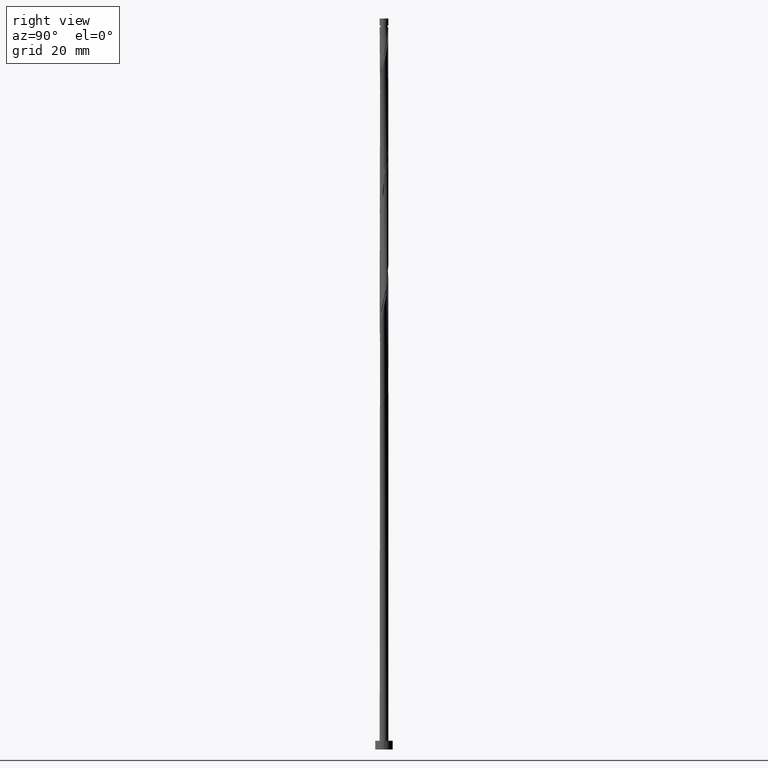
[diagram: clean part render]
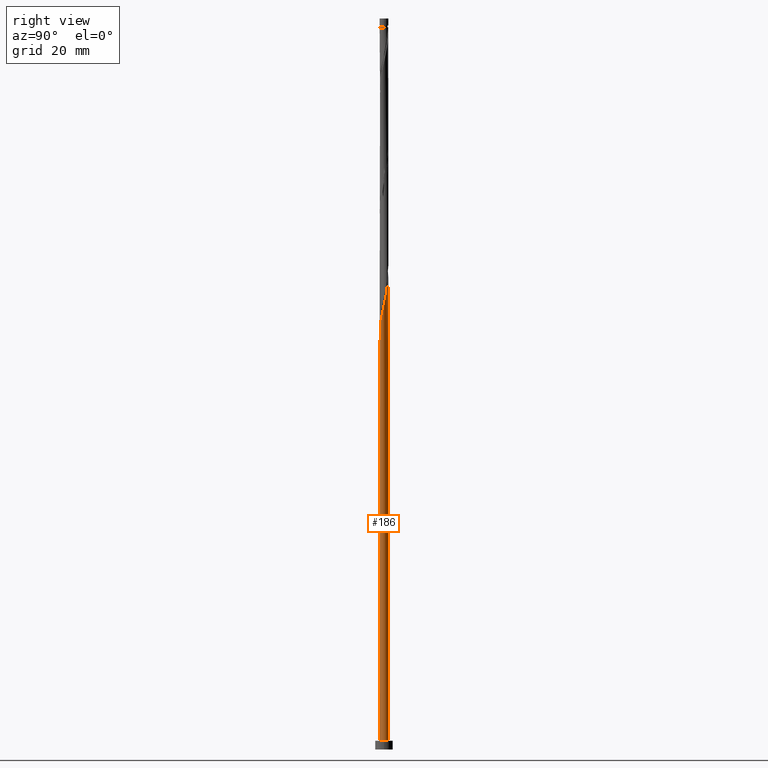
[diagram: same view with one face highlighted and labeled with its STEP entity id]
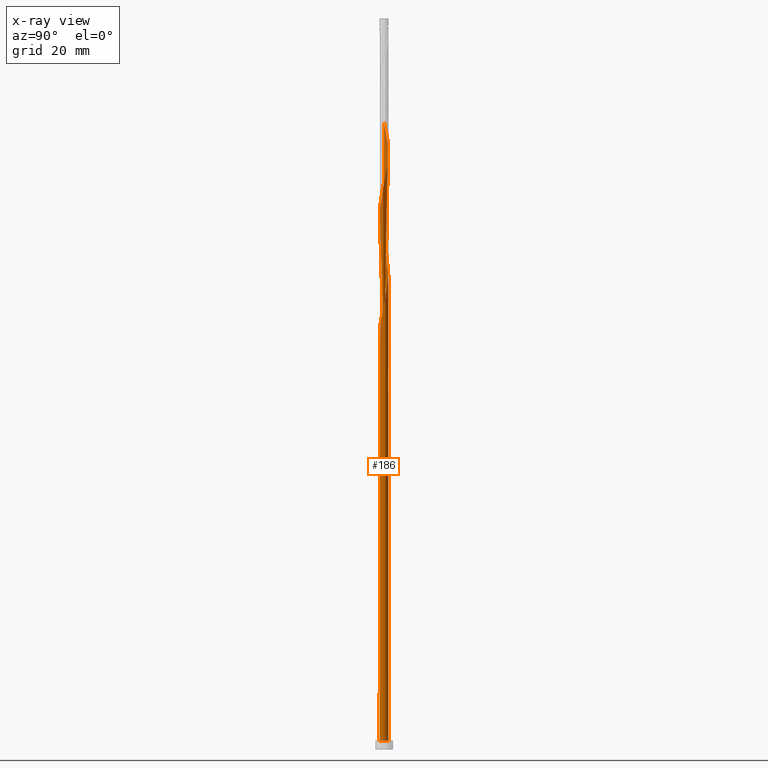
[diagram: x-ray of the same camera — body ghosted, the highlighted face saturated]
A machine part, right view. The second image highlights one B-rep face of the part: STEP entity #186.
The next image is the same camera in x-ray: the body ghosted, the highlighted face saturated — about 0% of this face is hidden behind the body in this view.
In plain terms, the highlighted cylindrical surface (bore or boss wall) has radius 0.75 mm, axis along (-0, -0, -1).
Its self-contained STEP definition (entity closure, byte-faithful):
#16 = EDGE_CURVE ( 'NONE', #1268, #358, #370, .T. ) ;
#21 = AXIS2_PLACEMENT_3D ( 'NONE', #22, #263, #475 ) ;
#22 = CARTESIAN_POINT ( 'NONE',  ( 0.000000000000000000, 0.000000000000000000, 125.0000000000000000 ) ) ;
#43 = CARTESIAN_POINT ( 'NONE',  ( -0.3690708837193967806, 0.6529063353886108700, 82.86957666063429429 ) ) ;
#53 = CARTESIAN_POINT ( 'NONE',  ( -0.5527664223062930260, 0.5069016496034537411, 83.91124332730096569 ) ) ;
#61 = CARTESIAN_POINT ( 'NONE',  ( 0.7451467435652671112, -0.08518409801177667662, 75.57790999396762288 ) ) ;
#68 = CARTESIAN_POINT ( 'NONE',  ( -0.6330517563783204515, 0.4193520491762752767, 84.43207666063430850 ) ) ;
#76 = CARTESIAN_POINT ( 'NONE',  ( -0.4724810882342659335, 0.5944512500306322611, 83.39040999396762288 ) ) ;
#88 = CARTESIAN_POINT ( 'NONE',  ( -0.5527664223062930260, 0.5069016496034537411, 104.7445766606343369 ) ) ;
#96 = CARTESIAN_POINT ( 'NONE',  ( 0.4193520491762752767, 0.6330517563783202295, 100.0570766606343085 ) ) ;
#144 = AXIS2_PLACEMENT_3D ( 'NONE', #674, #793, #1123 ) ;
#152 = CARTESIAN_POINT ( 'NONE',  ( 0.7316549078771213965, -0.2032037479510122313, 75.05707666063428007 ) ) ;
#160 = CARTESIAN_POINT ( 'NONE',  ( -0.7350000000000010969, -0.1492481155659933223, 66.20290999396762288 ) ) ;
#166 = CARTESIAN_POINT ( 'NONE',  ( -0.08518409801177663498, -0.7451467435652671112, 70.36957666063426586 ) ) ;
#171 = CARTESIAN_POINT ( 'NONE',  ( 0.7113614207465897010, 0.2656606792045275722, 77.14040999396762288 ) ) ;
#178 = CARTESIAN_POINT ( 'NONE',  ( -0.7113614207465897010, -0.2656606792045276833, 87.55707666063430850 ) ) ;
#185 =( BOUNDED_CURVE ( )  B_SPLINE_CURVE ( 2, ( #1436, #438, #327, #789, #670, #1453, #1118, #804, #684, #884, #1216, #635, #523 ),
 .UNSPECIFIED., .F., .T. ) 
 B_SPLINE_CURVE_WITH_KNOTS ( ( 3, 2, 2, 2, 2, 2, 3 ),
 ( 0.9295322023138552492, 0.9375000000000000000, 0.9499999999999999556, 0.9625000000000000222, 0.9749999999999999778, 0.9875000000000000444, 1.000000000000000000 ),
 .UNSPECIFIED. ) 
 CURVE ( )  GEOMETRIC_REPRESENTATION_ITEM ( )  RATIONAL_B_SPLINE_CURVE ( ( 0.9039174447099550536, 0.9019565955404844626, 0.9090909090909328194, 0.8978984914501488834, 0.9090909090909328194, 0.8978984914501488834, 0.9090909090909328194, 0.8978984914501488834, 0.9090909090909328194, 0.8978984914501488834, 0.9090909090909328194, 0.8978984914501488834, 0.9090909090909328194 ) ) 
 REPRESENTATION_ITEM ( '' )  );
#186 = ADVANCED_FACE ( 'NONE', ( #834 ), #1273, .T. ) ;
#196 =( BOUNDED_CURVE ( )  B_SPLINE_CURVE ( 2, ( #966, #1176, #160, #511, #752, #1184, #629, #637, #1307, #1418, #166, #305, #1190, #410, #1089, #736, #864, #1077, #762, #152, #61, #417, #517, #171, #609, #618, #1069, #1082, #1060, #842, #389, #1301, #1198, #1407, #43, #76, #53, #68, #525, #506, #960, #1400, #971, #178, #980, #495, #277, #950, #1393, #1281, #560, #1010, #1340, #440, #1111, #770, #1103, #454, #879, #1016, #218, #1218, #901, #345, #1447, #908, #1325, #96, #893, #1226, #645, #532, #654, #329, #448, #1210, #88, #337, #207, #1438, #791, #321, #538 ),
 .UNSPECIFIED., .F., .T. ) 
 B_SPLINE_CURVE_WITH_KNOTS ( ( 3, 2, 2, 2, 2, 2, 2, 2, 2, 2, 2, 2, 2, 2, 2, 2, 2, 2, 2, 2, 2, 2, 2, 2, 2, 2, 2, 2, 2, 2, 2, 2, 2, 2, 2, 2, 2, 2, 2, 2, 2, 3 ),
 ( 0.05453220231385545735, 0.06250000000000000000, 0.07499999999999995559, 0.08750000000000002220, 0.09999999999999997780, 0.1125000000000000444, 0.1250000000000000000, 0.1374999999999999556, 0.1500000000000000222, 0.1624999999999999778, 0.1750000000000000444, 0.1875000000000000000, 0.1999999999999999556, 0.2125000000000000222, 0.2249999999999999778, 0.2375000000000000444, 0.2500000000000000000, 0.2624999999999999556, 0.2750000000000000222, 0.2874999999999999778, 0.3000000000000000444, 0.3125000000000000000, 0.3249999999999999556, 0.3375000000000000222, 0.3499999999999999778, 0.3625000000000000444, 0.3750000000000000000, 0.3874999999999999556, 0.4000000000000000222, 0.4124999999999999778, 0.4250000000000000444, 0.4375000000000000000, 0.4499999999999999556, 0.4625000000000000222, 0.4749999999999999778, 0.4875000000000000444, 0.5000000000000000000, 0.5124999999999999556, 0.5250000000000000222, 0.5374999999999999778, 0.5500000000000000444, 0.5545322023138555823 ),
 .UNSPECIFIED. ) 
 CURVE ( )  GEOMETRIC_REPRESENTATION_ITEM ( )  RATIONAL_B_SPLINE_CURVE ( ( 0.9039174447099538323, 0.9019565955404834634, 0.9090909090909319312, 0.8978984914501476622, 0.9090909090909319312, 0.8978984914501476622, 0.9090909090909319312, 0.8978984914501476622, 0.9090909090909319312, 0.8978984914501476622, 0.9090909090909319312, 0.8978984914501476622, 0.9090909090909319312, 0.8978984914501476622, 0.9090909090909319312, 0.8978984914501476622, 0.9090909090909319312, 0.8978984914501476622, 0.9090909090909319312, 0.8978984914501476622, 0.9090909090909319312, 0.8978984914501476622, 0.9090909090909319312, 0.8978984914501476622, 0.9090909090909319312, 0.8978984914501476622, 0.9090909090909319312, 0.8978984914501476622, 0.9090909090909319312, 0.8978984914501476622, 0.9090909090909319312, 0.8978984914501476622, 0.9090909090909319312, 0.8978984914501476622, 0.9090909090909319312, 0.8978984914501476622, 0.9090909090909319312, 0.8978984914501476622, 0.9090909090909319312, 0.8978984914501476622, 0.9090909090909319312, 0.8978984914501476622, 0.9090909090909319312, 0.8978984914501476622, 0.9090909090909319312, 0.8978984914501476622, 0.9090909090909319312, 0.8978984914501476622, 0.9090909090909319312, 0.8978984914501476622, 0.9090909090909319312, 0.8978984914501476622, 0.9090909090909319312, 0.8978984914501476622, 0.9090909090909319312, 0.8978984914501476622, 0.9090909090909319312, 0.8978984914501476622, 0.9090909090909319312, 0.8978984914501476622, 0.9090909090909319312, 0.8978984914501476622, 0.9090909090909319312, 0.8978984914501476622, 0.9090909090909319312, 0.8978984914501476622, 0.9090909090909319312, 0.8978984914501476622, 0.9090909090909319312, 0.8978984914501476622, 0.9090909090909319312, 0.8978984914501476622, 0.9090909090909319312, 0.8978984914501476622, 0.9090909090909319312, 0.8978984914501476622, 0.9090909090909319312, 0.8978984914501476622, 0.9090909090909319312, 0.8978984914501476622, 0.9090909090909319312, 0.9050328050005959080, 0.9039174447099538323 ) ) 
 REPRESENTATION_ITEM ( '' )  );
#207 = CARTESIAN_POINT ( 'NONE',  ( -0.6823533321277208685, 0.3112778985636436846, 105.7862433273009657 ) ) ;
#218 = CARTESIAN_POINT ( 'NONE',  ( 0.7451467435652671112, -0.08518409801177667662, 96.41124332730096569 ) ) ;
#223 = CARTESIAN_POINT ( 'NONE',  ( -0.7500000000000012212, -9.145792697755348521E-16, 65.53810755249737952 ) ) ;
#263 = DIRECTION ( 'NONE',  ( -0.000000000000000000, -0.000000000000000000, -1.000000000000000000 ) ) ;
#277 = CARTESIAN_POINT ( 'NONE',  ( -0.5069016496034537411, -0.5527664223062929150, 89.11957666063430850 ) ) ;
#283 = CARTESIAN_POINT ( 'NONE',  ( -0.1492481155659932113, 0.7350000000000010969, 60.99457666063429429 ) ) ;
#287 = VERTEX_POINT ( 'NONE', #1420 ) ;
#292 = CARTESIAN_POINT ( 'NONE',  ( -0.3690708837193967806, 0.6529063353886108700, 62.03624332730095858 ) ) ;
#302 = LINE ( 'NONE', #1352, #1068 ) ;
#305 = CARTESIAN_POINT ( 'NONE',  ( 0.03283555192745890583, -0.7586385792534124928, 70.89040999396763709 ) ) ;
#321 = CARTESIAN_POINT ( 'NONE',  ( -0.7500000000000015543, 0.04273030308482107104, 107.0152631299567645 ) ) ;
#327 = CARTESIAN_POINT ( 'NONE',  ( -0.7350000000000015410, 0.1492481155659934611, 66.20290999396763709 ) ) ;
#329 = CARTESIAN_POINT ( 'NONE',  ( -0.2656606792045277388, 0.7113614207465897010, 103.1820766606343227 ) ) ;
#337 = CARTESIAN_POINT ( 'NONE',  ( -0.6330517563783204515, 0.4193520491762752767, 105.2654099939676229 ) ) ;
#345 = CARTESIAN_POINT ( 'NONE',  ( 0.7113614207465897010, 0.2656606792045275722, 97.97374332730097990 ) ) ;
#346 = DIRECTION ( 'NONE',  ( -0.000000000000000000, -0.000000000000000000, -1.000000000000000000 ) ) ;
#355 = DIRECTION ( 'NONE',  ( -0.000000000000000000, -0.000000000000000000, -1.000000000000000000 ) ) ;
#358 = VERTEX_POINT ( 'NONE', #755 ) ;
#365 = CIRCLE ( 'NONE', #1141, 0.7500000000000001110 ) ;
#370 = LINE ( 'NONE', #952, #1088 ) ;
#389 = CARTESIAN_POINT ( 'NONE',  ( 0.08518409801177677376, 0.7451467435652671112, 80.78624332730095148 ) ) ;
#396 = EDGE_CURVE ( 'NONE', #1249, #823, #302, .T. ) ;
#400 = EDGE_LOOP ( 'NONE', ( #1029, #1036, #615, #1166, #1159, #1449, #701, #926, #1257 ) ) ;
#404 = CARTESIAN_POINT ( 'NONE',  ( -0.2656606792045277388, 0.7113614207465897010, 61.51540999396763709 ) ) ;
#410 = CARTESIAN_POINT ( 'NONE',  ( 0.2656606792045276277, -0.7113614207465897010, 71.93207666063432271 ) ) ;
#417 = CARTESIAN_POINT ( 'NONE',  ( 0.7586385792534124928, 0.03283555192745887807, 76.09874332730097990 ) ) ;
#423 = DIRECTION ( 'NONE',  ( 0.000000000000000000, 0.000000000000000000, 1.000000000000000000 ) ) ;
#430 = VERTEX_POINT ( 'NONE', #540 ) ;
#438 = CARTESIAN_POINT ( 'NONE',  ( -0.7500000000000012212, 0.07537783614444158731, 66.53340786003005292 ) ) ;
#440 = CARTESIAN_POINT ( 'NONE',  ( 0.2656606792045276277, -0.7113614207465897010, 92.76540999396763709 ) ) ;
#448 = CARTESIAN_POINT ( 'NONE',  ( -0.3690708837193967806, 0.6529063353886108700, 103.7029099939676229 ) ) ;
#451 =( BOUNDED_CURVE ( )  B_SPLINE_CURVE ( 2, ( #283, #404, #292, #1182, #1173, #870, #839, #1081, #1066, #861, #749 ),
 .UNSPECIFIED., .F., .T. ) 
 B_SPLINE_CURVE_WITH_KNOTS ( ( 3, 2, 2, 2, 2, 3 ),
 ( 0.000000000000000000, 0.01249999999999995559, 0.02500000000000002220, 0.03749999999999997780, 0.05000000000000004441, 0.05453220231385545735 ),
 .UNSPECIFIED. ) 
 CURVE ( )  GEOMETRIC_REPRESENTATION_ITEM ( )  RATIONAL_B_SPLINE_CURVE ( ( 0.9090909090909319312, 0.8978984914501476622, 0.9090909090909319312, 0.8978984914501476622, 0.9090909090909319312, 0.8978984914501476622, 0.9090909090909319312, 0.8978984914501476622, 0.9090909090909319312, 0.9050328050005959080, 0.9039174447099538323 ) ) 
 REPRESENTATION_ITEM ( '' )  );
#454 = CARTESIAN_POINT ( 'NONE',  ( 0.6330517563783203405, -0.4193520491762752767, 94.84874332730097990 ) ) ;
#475 = DIRECTION ( 'NONE',  ( -1.000000000000000000, 0.000000000000000000, 0.000000000000000000 ) ) ;
#495 = CARTESIAN_POINT ( 'NONE',  ( -0.5944512500306322611, -0.4724810882342659335, 88.59874332730096569 ) ) ;
#506 = CARTESIAN_POINT ( 'NONE',  ( -0.7316549078771213965, 0.2032037479510121203, 85.47374332730097990 ) ) ;
#511 = CARTESIAN_POINT ( 'NONE',  ( -0.7113614207465897010, -0.2656606792045276833, 66.72374332730097990 ) ) ;
#517 = CARTESIAN_POINT ( 'NONE',  ( 0.7350000000000010969, 0.1492481155659932113, 76.61957666063428007 ) ) ;
#523 = CARTESIAN_POINT ( 'NONE',  ( 0.1492481155659935999, 0.7350000000000015410, 60.99457666063430139 ) ) ;
#525 = CARTESIAN_POINT ( 'NONE',  ( -0.6823533321277208685, 0.3112778985636436846, 84.95290999396765130 ) ) ;
#532 = CARTESIAN_POINT ( 'NONE',  ( -0.03283555192745883644, 0.7586385792534127148, 102.1404099939676513 ) ) ;
#538 = CARTESIAN_POINT ( 'NONE',  ( -0.7500000000000012212, 5.172620460205893626E-16, 107.2047742191640509 ) ) ;
#540 = CARTESIAN_POINT ( 'NONE',  ( 0.1492481155659935999, 0.7350000000000015410, 60.99457666063429429 ) ) ;
#560 = CARTESIAN_POINT ( 'NONE',  ( -0.08518409801177663498, -0.7451467435652671112, 91.20290999396759446 ) ) ;
#589 = EDGE_CURVE ( 'NONE', #1076, #430, #794, .T. ) ;
#598 = AXIS2_PLACEMENT_3D ( 'NONE', #899, #423, #780 ) ;
#609 = CARTESIAN_POINT ( 'NONE',  ( 0.6529063353886108700, 0.3690708837193966696, 77.66124332730096569 ) ) ;
#615 = ORIENTED_EDGE ( 'NONE', *, *, #396, .T. ) ;
#618 = CARTESIAN_POINT ( 'NONE',  ( 0.5944512500306324831, 0.4724810882342659335, 78.18207666063426586 ) ) ;
#629 = CARTESIAN_POINT ( 'NONE',  ( -0.5069016496034537411, -0.5527664223062929150, 68.28624332730096569 ) ) ;
#635 = CARTESIAN_POINT ( 'NONE',  ( 0.03283555192745900297, 0.7586385792534126038, 61.51540999396761578 ) ) ;
#637 = CARTESIAN_POINT ( 'NONE',  ( -0.4193520491762752767, -0.6330517563783203405, 68.80707666063430850 ) ) ;
#645 = CARTESIAN_POINT ( 'NONE',  ( 0.08518409801177677376, 0.7451467435652671112, 101.6195766606342801 ) ) ;
#654 = CARTESIAN_POINT ( 'NONE',  ( -0.1492481155659932113, 0.7350000000000010969, 102.6612433273009799 ) ) ;
#670 = CARTESIAN_POINT ( 'NONE',  ( -0.6529063353886110921, 0.3690708837193968916, 65.16124332730095148 ) ) ;
#674 = CARTESIAN_POINT ( 'NONE',  ( 0.000000000000000000, 0.000000000000000000, 60.99457666063435113 ) ) ;
#684 = CARTESIAN_POINT ( 'NONE',  ( -0.3112778985636437956, 0.6823533321277210906, 63.07790999396761578 ) ) ;
#701 = ORIENTED_EDGE ( 'NONE', *, *, #1261, .F. ) ;
#732 = CARTESIAN_POINT ( 'NONE',  ( -0.7500000000000012212, 5.172620460205893626E-16, 107.2047742191640509 ) ) ;
#736 = CARTESIAN_POINT ( 'NONE',  ( 0.4724810882342659335, -0.5944512500306322611, 72.97374332730095148 ) ) ;
#749 = CARTESIAN_POINT ( 'NONE',  ( -0.7500000000000012212, -9.145792697755348521E-16, 65.53810755249737952 ) ) ;
#752 = CARTESIAN_POINT ( 'NONE',  ( -0.6529063353886108700, -0.3690708837193967806, 67.24457666063429429 ) ) ;
#755 = CARTESIAN_POINT ( 'NONE',  ( -0.7500000000000012212, 9.782999566041570812E-16, 66.86771243543789467 ) ) ;
#762 = CARTESIAN_POINT ( 'NONE',  ( 0.6823533321277208685, -0.3112778985636437401, 74.53624332730095148 ) ) ;
#769 = EDGE_CURVE ( 'NONE', #1249, #1268, #196, .T. ) ;
#770 = CARTESIAN_POINT ( 'NONE',  ( 0.4724810882342659335, -0.5944512500306322611, 93.80707666063430850 ) ) ;
#774 = CARTESIAN_POINT ( 'NONE',  ( -0.1492481155659931835, 0.7350000000000010969, 60.99457666063429429 ) ) ;
#780 = DIRECTION ( 'NONE',  ( 1.000000000000000000, 0.000000000000000000, 0.000000000000000000 ) ) ;
#789 = CARTESIAN_POINT ( 'NONE',  ( -0.7113614207465895900, 0.2656606792045276833, 65.68207666063429429 ) ) ;
#791 = CARTESIAN_POINT ( 'NONE',  ( -0.7451467435652671112, 0.08518409801177657947, 106.8279099939676087 ) ) ;
#793 = DIRECTION ( 'NONE',  ( -2.054325274013052231E-29, -6.938893903907234689E-14, -1.000000000000000000 ) ) ;
#794 = CIRCLE ( 'NONE', #144, 0.7500000000000001110 ) ;
#804 = CARTESIAN_POINT ( 'NONE',  ( -0.4193520491762752767, 0.6330517563783203405, 63.59874332730095858 ) ) ;
#823 = VERTEX_POINT ( 'NONE', #947 ) ;
#834 = FACE_OUTER_BOUND ( 'NONE', #400, .T. ) ;
#839 = CARTESIAN_POINT ( 'NONE',  ( -0.6823533321277208685, 0.3112778985636436846, 64.11957666063428007 ) ) ;
#842 = CARTESIAN_POINT ( 'NONE',  ( 0.2032037479510122313, 0.7316549078771213965, 80.26540999396763709 ) ) ;
#861 = CARTESIAN_POINT ( 'NONE',  ( -0.7500000000000015543, 0.04273030308482225759, 65.34859646329009308 ) ) ;
#864 = CARTESIAN_POINT ( 'NONE',  ( 0.5527664223062929150, -0.5069016496034537411, 73.49457666063429429 ) ) ;
#870 = CARTESIAN_POINT ( 'NONE',  ( -0.6330517563783204515, 0.4193520491762752767, 63.59874332730095148 ) ) ;
#879 = CARTESIAN_POINT ( 'NONE',  ( 0.6823533321277208685, -0.3112778985636437401, 95.36957666063429429 ) ) ;
#883 = DIRECTION ( 'NONE',  ( 0.000000000000000000, 0.000000000000000000, 1.000000000000000000 ) ) ;
#884 = CARTESIAN_POINT ( 'NONE',  ( -0.2032037479510120925, 0.7316549078771213965, 62.55707666063427297 ) ) ;
#886 = CIRCLE ( 'NONE', #598, 0.7500000000000001110 ) ;
#893 = CARTESIAN_POINT ( 'NONE',  ( 0.3112778985636437956, 0.6823533321277208685, 100.5779099939675802 ) ) ;
#899 = CARTESIAN_POINT ( 'NONE',  ( 0.000000000000000000, 0.000000000000000000, 1.500000000000000000 ) ) ;
#901 = CARTESIAN_POINT ( 'NONE',  ( 0.7350000000000010969, 0.1492481155659932113, 97.45290999396762288 ) ) ;
#908 = CARTESIAN_POINT ( 'NONE',  ( 0.5944512500306324831, 0.4724810882342659335, 99.01540999396762288 ) ) ;
#926 = ORIENTED_EDGE ( 'NONE', *, *, #589, .T. ) ;
#935 = EDGE_CURVE ( 'NONE', #287, #823, #365, .T. ) ;
#947 = CARTESIAN_POINT ( 'NONE',  ( -0.7500000000000001110, 0.000000000000000000, 1.500000000000000000 ) ) ;
#950 = CARTESIAN_POINT ( 'NONE',  ( -0.4193520491762752767, -0.6330517563783203405, 89.64040999396763709 ) ) ;
#952 = CARTESIAN_POINT ( 'NONE',  ( -0.7500000000000001110, 0.000000000000000000, 125.0000000000000000 ) ) ;
#960 = CARTESIAN_POINT ( 'NONE',  ( -0.7451467435652671112, 0.08518409801177657947, 85.99457666063429429 ) ) ;
#966 = CARTESIAN_POINT ( 'NONE',  ( -0.7500000000000012212, -9.145792697755348521E-16, 65.53810755249737952 ) ) ;
#971 = CARTESIAN_POINT ( 'NONE',  ( -0.7350000000000010969, -0.1492481155659933223, 87.03624332730095148 ) ) ;
#980 = CARTESIAN_POINT ( 'NONE',  ( -0.6529063353886108700, -0.3690708837193967806, 88.07790999396762288 ) ) ;
#1010 = CARTESIAN_POINT ( 'NONE',  ( 0.03283555192745890583, -0.7586385792534124928, 91.72374332730099411 ) ) ;
#1016 = CARTESIAN_POINT ( 'NONE',  ( 0.7316549078771213965, -0.2032037479510122313, 95.89040999396760867 ) ) ;
#1029 = ORIENTED_EDGE ( 'NONE', *, *, #16, .F. ) ;
#1036 = ORIENTED_EDGE ( 'NONE', *, *, #769, .F. ) ;
#1060 = CARTESIAN_POINT ( 'NONE',  ( 0.3112778985636437956, 0.6823533321277208685, 79.74457666063429429 ) ) ;
#1066 = CARTESIAN_POINT ( 'NONE',  ( -0.7451467435652671112, 0.08518409801177657947, 65.16124332730095148 ) ) ;
#1068 = VECTOR ( 'NONE', #346, 1000.000000000000000 ) ;
#1069 = CARTESIAN_POINT ( 'NONE',  ( 0.5069016496034539632, 0.5527664223062929150, 78.70290999396762288 ) ) ;
#1076 = VERTEX_POINT ( 'NONE', #774 ) ;
#1077 = CARTESIAN_POINT ( 'NONE',  ( 0.6330517563783203405, -0.4193520491762752767, 74.01540999396767972 ) ) ;
#1081 = CARTESIAN_POINT ( 'NONE',  ( -0.7316549078771213965, 0.2032037479510121203, 64.64040999396763709 ) ) ;
#1082 = CARTESIAN_POINT ( 'NONE',  ( 0.4193520491762752767, 0.6330517563783202295, 79.22374332730093727 ) ) ;
#1088 = VECTOR ( 'NONE', #355, 1000.000000000000000 ) ;
#1089 = CARTESIAN_POINT ( 'NONE',  ( 0.3690708837193967806, -0.6529063353886108700, 72.45290999396760867 ) ) ;
#1103 = CARTESIAN_POINT ( 'NONE',  ( 0.5527664223062929150, -0.5069016496034537411, 94.32790999396765130 ) ) ;
#1111 = CARTESIAN_POINT ( 'NONE',  ( 0.3690708837193967806, -0.6529063353886108700, 93.28624332730093727 ) ) ;
#1118 = CARTESIAN_POINT ( 'NONE',  ( -0.5069016496034538521, 0.5527664223062933591, 64.11957666063429429 ) ) ;
#1123 = DIRECTION ( 'NONE',  ( 0.000000000000000000, 1.000000000000000000, -7.401486830834375253E-14 ) ) ;
#1141 = AXIS2_PLACEMENT_3D ( 'NONE', #1215, #883, #1421 ) ;
#1159 = ORIENTED_EDGE ( 'NONE', *, *, #935, .T. ) ;
#1166 = ORIENTED_EDGE ( 'NONE', *, *, #1388, .T. ) ;
#1173 = CARTESIAN_POINT ( 'NONE',  ( -0.5527664223062930260, 0.5069016496034537411, 63.07790999396760867 ) ) ;
#1176 = CARTESIAN_POINT ( 'NONE',  ( -0.7500000000000006661, -0.07537783614444347469, 65.87241212790523548 ) ) ;
#1182 = CARTESIAN_POINT ( 'NONE',  ( -0.4724810882342659335, 0.5944512500306322611, 62.55707666063430139 ) ) ;
#1184 = CARTESIAN_POINT ( 'NONE',  ( -0.5944512500306322611, -0.4724810882342659335, 67.76540999396763709 ) ) ;
#1190 = CARTESIAN_POINT ( 'NONE',  ( 0.1492481155659932390, -0.7350000000000010969, 71.41124332730095148 ) ) ;
#1198 = CARTESIAN_POINT ( 'NONE',  ( -0.1492481155659932113, 0.7350000000000010969, 81.82790999396763709 ) ) ;
#1210 = CARTESIAN_POINT ( 'NONE',  ( -0.4724810882342659335, 0.5944512500306322611, 104.2237433273009515 ) ) ;
#1215 = CARTESIAN_POINT ( 'NONE',  ( 0.000000000000000000, 0.000000000000000000, 1.500000000000000000 ) ) ;
#1216 = CARTESIAN_POINT ( 'NONE',  ( -0.08518409801177662111, 0.7451467435652672222, 62.03624332730095858 ) ) ;
#1218 = CARTESIAN_POINT ( 'NONE',  ( 0.7586385792534124928, 0.03283555192745887807, 96.93207666063430850 ) ) ;
#1226 = CARTESIAN_POINT ( 'NONE',  ( 0.2032037479510122313, 0.7316549078771213965, 101.0987433273009657 ) ) ;
#1249 = VERTEX_POINT ( 'NONE', #223 ) ;
#1257 = ORIENTED_EDGE ( 'NONE', *, *, #1296, .F. ) ;
#1261 = EDGE_CURVE ( 'NONE', #1076, #1249, #451, .T. ) ;
#1268 = VERTEX_POINT ( 'NONE', #732 ) ;
#1273 = CYLINDRICAL_SURFACE ( 'NONE', #21, 0.7500000000000001110 ) ;
#1281 = CARTESIAN_POINT ( 'NONE',  ( -0.2032037479510122036, -0.7316549078771213965, 90.68207666063432271 ) ) ;
#1296 = EDGE_CURVE ( 'NONE', #358, #430, #185, .T. ) ;
#1301 = CARTESIAN_POINT ( 'NONE',  ( -0.03283555192745883644, 0.7586385792534127148, 81.30707666063429429 ) ) ;
#1307 = CARTESIAN_POINT ( 'NONE',  ( -0.3112778985636437401, -0.6823533321277208685, 69.32790999396762288 ) ) ;
#1325 = CARTESIAN_POINT ( 'NONE',  ( 0.5069016496034539632, 0.5527664223062929150, 99.53624332730096569 ) ) ;
#1340 = CARTESIAN_POINT ( 'NONE',  ( 0.1492481155659932390, -0.7350000000000010969, 92.24457666063429429 ) ) ;
#1352 = CARTESIAN_POINT ( 'NONE',  ( -0.7500000000000001110, 0.000000000000000000, 125.0000000000000000 ) ) ;
#1388 = EDGE_CURVE ( 'NONE', #823, #287, #886, .T. ) ;
#1393 = CARTESIAN_POINT ( 'NONE',  ( -0.3112778985636437401, -0.6823533321277208685, 90.16124332730097990 ) ) ;
#1400 = CARTESIAN_POINT ( 'NONE',  ( -0.7586385792534127148, -0.03283555192745898910, 86.51540999396763709 ) ) ;
#1407 = CARTESIAN_POINT ( 'NONE',  ( -0.2656606792045277388, 0.7113614207465897010, 82.34874332730097990 ) ) ;
#1418 = CARTESIAN_POINT ( 'NONE',  ( -0.2032037479510122036, -0.7316549078771213965, 69.84874332730097990 ) ) ;
#1420 = CARTESIAN_POINT ( 'NONE',  ( 0.7500000000000001110, 0.000000000000000000, 1.500000000000000000 ) ) ;
#1421 = DIRECTION ( 'NONE',  ( 1.000000000000000000, 0.000000000000000000, 0.000000000000000000 ) ) ;
#1436 = CARTESIAN_POINT ( 'NONE',  ( -0.7500000000000012212, 9.782999566041570812E-16, 66.86771243543789467 ) ) ;
#1438 = CARTESIAN_POINT ( 'NONE',  ( -0.7316549078771213965, 0.2032037479510121203, 106.3070766606342943 ) ) ;
#1447 = CARTESIAN_POINT ( 'NONE',  ( 0.6529063353886108700, 0.3690708837193966696, 98.49457666063429429 ) ) ;
#1449 = ORIENTED_EDGE ( 'NONE', *, *, #396, .F. ) ;
#1453 = CARTESIAN_POINT ( 'NONE',  ( -0.5944512500306322611, 0.4724810882342659335, 64.64040999396760867 ) ) ;